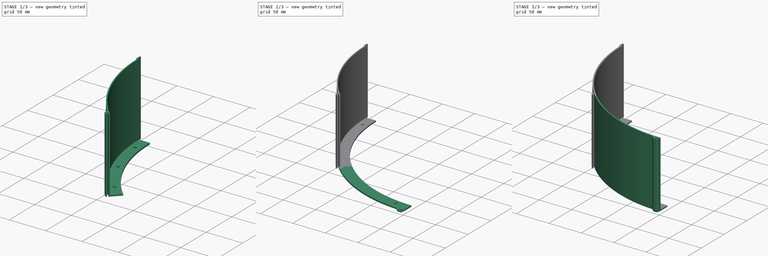
[diagram: build sequence overview — one tinted view per stage of 3, left to right]
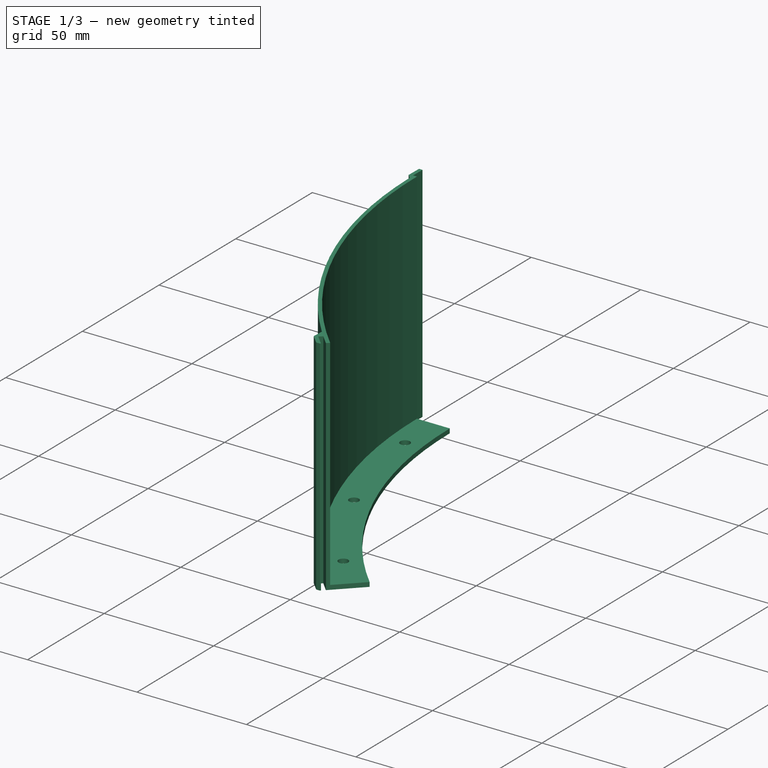
[diagram: stage 1 of 3 — iso view after this stage's code; geometry added in this stage tinted green]
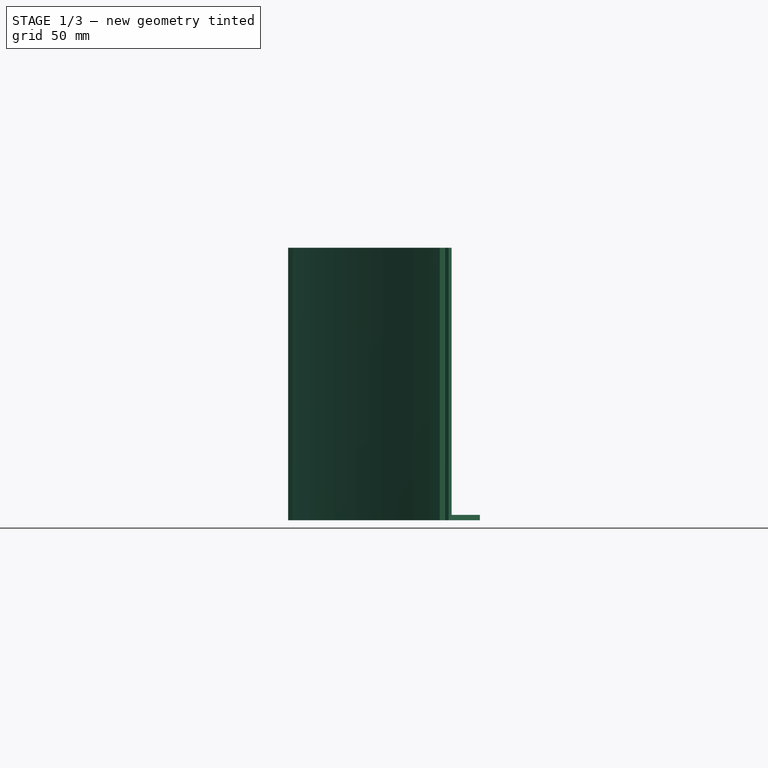
[diagram: stage 1 of 3 — front view after this stage's code; geometry added in this stage tinted green]
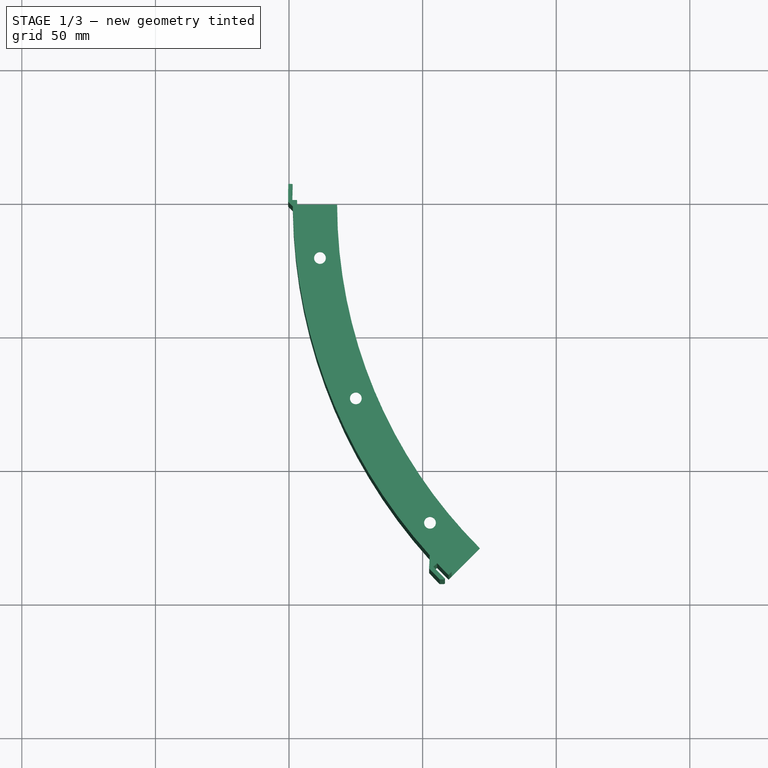
[diagram: stage 1 of 3 — top view after this stage's code; geometry added in this stage tinted green]
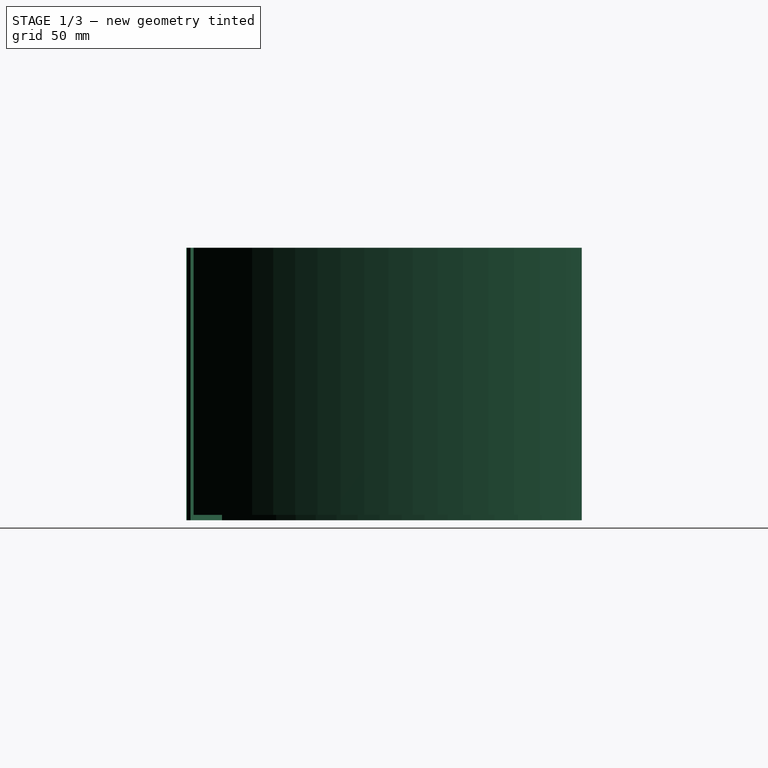
[diagram: stage 1 of 3 — right view after this stage's code; geometry added in this stage tinted green]
FCSTD DOCUMENT  (FreeCAD 0.20R29410 (Git))
Label: CatPieSide
License: All rights reserved
LicenseURL: http://en.wikipedia.org/wiki/All_rights_reserved
objects: Sketcher::SketchObject×6, PartDesign::Pad×4, PartDesign::Fillet×2, PartDesign::Body×2
note: 20 computed .brp shape members not serialized (recipe doc carries the construction recipe); baked Part::Feature solids carry a one-line shape summary decoded from their .brp

FEATURE [PartDesign::Body] Body  label="90"
  Group = -> [Sketch,Sketch001,Pad,Sketch002,Pad001,Fillet]
  Origin = -> Origin
  Tip = -> Fillet
FEATURE [Sketcher::SketchObject] Sketch003  label="Template001"
  FullyConstrained = true
  MapMode = 5
  Support = -> [XY_Plane001]
  sketch-geometry (46):
    g0: ArcOfCircle CenterX=0 CenterY=0 CenterZ=0 NormalX=0 NormalY=0 NormalZ=1 AngleXU=0 Radius=197 StartAngle=3.1426 EndAngle=3.928
    g1: ArcOfCircle CenterX=0 CenterY=0 CenterZ=0 NormalX=0 NormalY=0 NormalZ=1 AngleXU=0 Radius=182 StartAngle=3.1426 EndAngle=3.928
    g2: LineSegment StartX=-198.598 StartY=-0.86114 StartZ=0 EndX=-200.348 EndY=-0.868728 EndZ=0
    g3: ArcOfCircle CenterX=0 CenterY=0 CenterZ=0 NormalX=0 NormalY=0 NormalZ=1 AngleXU=0 Radius=198.6 StartAngle=3.1426 EndAngle=3.14593
    g4: LineSegment StartX=-198.6 StartY=-0.2 StartZ=0 EndX=-197 EndY=-0.198389 EndZ=0
    g5: ArcOfCircle CenterX=0 CenterY=0 CenterZ=0 NormalX=0 NormalY=0 NormalZ=1 AngleXU=0 Radius=200.35 StartAngle=3.11241 EndAngle=3.14593
    g6: LineSegment StartX=-200.265 StartY=5.84594 StartZ=0 EndX=-198.665 EndY=5.79925 EndZ=0
    g7: ArcOfCircle CenterX=0 CenterY=0 CenterZ=0 NormalX=0 NormalY=0 NormalZ=1 AngleXU=0 Radius=198.75 StartAngle=3.11241 EndAngle=3.1426
    g8: LineSegment StartX=-197 StartY=-0.198389 StartZ=0 EndX=-182 EndY=-0.183283 EndZ=0
    g9: LineSegment StartX=-198.75 StartY=-0.200151 StartZ=0 EndX=-198.6 EndY=-0.2 EndZ=0
    g10: ArcOfCircle CenterX=0 CenterY=0 CenterZ=0 NormalX=0 NormalY=0 NormalZ=1 AngleXU=0 Radius=198.6 StartAngle=3.14593 EndAngle=3.15478
    g11: LineSegment StartX=-200.348 StartY=-0.868728 StartZ=0 EndX=-198.583 EndY=-2.61887 EndZ=0
    g12: LineSegment StartX=-128.564 StartY=-128.823 StartZ=0 EndX=-139.16 EndY=-139.44 EndZ=0
    g13: LineSegment StartX=-139.16 StartY=-139.44 StartZ=0 EndX=-140.29 EndY=-140.573 EndZ=0
    g14: Circle CenterX=-188.424 CenterY=-20.1619 CenterZ=0 NormalX=0 NormalY=0 NormalZ=1 AngleXU=0 Radius=2.2
    g15: Circle CenterX=-147.253 CenterY=-119.276 CenterZ=0 NormalX=0 NormalY=0 NormalZ=1 AngleXU=0 Radius=2.2
    g16: ArcOfCircle CenterX=0 CenterY=0 CenterZ=0 NormalX=0 NormalY=0 NormalZ=1 AngleXU=0 Radius=189.5 StartAngle=3.1426 EndAngle=3.928
    g17: ArcOfCircle CenterX=0 CenterY=0 CenterZ=0 NormalX=0 NormalY=0 NormalZ=1 AngleXU=0 Radius=200.35 StartAngle=3.89781 EndAngle=3.928
    g18: ArcOfCircle CenterX=0 CenterY=0 CenterZ=0 NormalX=0 NormalY=0 NormalZ=1 AngleXU=0 Radius=198.75 StartAngle=3.89781 EndAngle=3.928
    g19: LineSegment StartX=-145.742 StartY=-137.475 StartZ=0 EndX=-144.578 EndY=-136.377 EndZ=0
    g20: LineSegment StartX=-140.29 StartY=-140.573 StartZ=0 EndX=-140.396 EndY=-140.679 EndZ=0
    g21: LineSegment StartX=-198.75 StartY=-0.200151 StartZ=0 EndX=-200.265 EndY=5.84594 EndZ=0
    g22: LineSegment StartX=-140.396 StartY=-140.679 StartZ=0 EndX=-145.742 EndY=-137.475 EndZ=0
    g23: ArcOfCircle CenterX=0 CenterY=0 CenterZ=0 NormalX=0 NormalY=0 NormalZ=1 AngleXU=0 Radius=198.6 StartAngle=3.89705 EndAngle=3.928
    g24: LineSegment StartX=-144.572 StartY=-136.165 StartZ=0 EndX=-145.955 EndY=-137.468 EndZ=0
    g25: ArcOfCircle CenterX=0 CenterY=0 CenterZ=0 NormalX=0 NormalY=0 NormalZ=1 AngleXU=0 Radius=198.75 StartAngle=3.89705 EndAngle=3.89781
    g26: LineSegment StartX=-144.681 StartY=-136.268 StartZ=0 EndX=-144.578 EndY=-136.377 EndZ=0
    g27: ArcOfCircle CenterX=0 CenterY=0 CenterZ=0 NormalX=0 NormalY=0 NormalZ=1 AngleXU=0 Radius=200.5 StartAngle=3.89705 EndAngle=3.928
    g28: LineSegment StartX=-141.526 StartY=-141.811 StartZ=0 EndX=-141.632 EndY=-141.918 EndZ=0
    g29: ArcOfCircle CenterX=0 CenterY=0 CenterZ=0 NormalX=0 NormalY=0 NormalZ=1 AngleXU=0 Radius=202.1 StartAngle=3.89367 EndAngle=3.92208
    g30: LineSegment StartX=-141.632 StartY=-141.918 StartZ=0 EndX=-142.762 EndY=-143.05 EndZ=0
    g31: Circle CenterX=-198.75 CenterY=-0.200151 CenterZ=0 NormalX=0 NormalY=0 NormalZ=1 AngleXU=0 Radius=1.6
    g32: Circle CenterX=-145.955 CenterY=-137.468 CenterZ=0 NormalX=0 NormalY=0 NormalZ=1 AngleXU=0 Radius=1.6
    g33: ArcOfCircle CenterX=0 CenterY=0 CenterZ=0 NormalX=0 NormalY=0 NormalZ=1 AngleXU=0 Radius=198.6 StartAngle=3.15478 EndAngle=3.8765
    g34: ArcOfCircle CenterX=0 CenterY=0 CenterZ=0 NormalX=0 NormalY=0 NormalZ=1 AngleXU=0 Radius=198.6 StartAngle=3.8765 EndAngle=3.89705
    g35: LineSegment StartX=-147.587 StartY=-138.067 StartZ=0 EndX=-147.34 EndY=-133.165 EndZ=0
    g36: LineSegment StartX=-147.34 StartY=-133.165 StartZ=0 EndX=-144.603 EndY=-136.194 EndZ=0
    g37: ArcOfCircle CenterX=0 CenterY=0 CenterZ=0 NormalX=0 NormalY=0 NormalZ=1 AngleXU=0 Radius=202.1 StartAngle=3.92208 EndAngle=3.928
    g38: LineSegment StartX=-141.632 StartY=-141.918 StartZ=0 EndX=-141.915 EndY=-142.201 EndZ=0
    g39: LineSegment StartX=-141.915 StartY=-142.201 StartZ=0 EndX=-143.607 EndY=-142.202 EndZ=0
    g40: Circle CenterX=-175.002 CenterY=-72.6948 CenterZ=0 NormalX=0 NormalY=0 NormalZ=1 AngleXU=0 Radius=2.2
    g41: LineSegment StartX=0 StartY=0 StartZ=0 EndX=-175.002 EndY=-72.6948 EndZ=0
    g42: LineSegment StartX=-140.396 StartY=-140.679 StartZ=0 EndX=-141.526 EndY=-141.811 EndZ=0
    g43: LineSegment StartX=0 StartY=0 StartZ=0 EndX=-182 EndY=-0.183283 EndZ=0
    g44: LineSegment StartX=0 StartY=0 StartZ=0 EndX=-128.564 EndY=-128.823 EndZ=0
    g45: GeomPoint X=-198.6 Y=0 Z=0
  constraints (121):
    c: Radius(g0) = 197
    c: DistanceX(g0,g1) = 15
    c: Coincident(g2,g10)
    c: Coincident(g3,g10)
    c: Coincident(g4,g3)
    c: Coincident(g4,g0)
    c: Coincident(g5,g2)
    c: PointOnObject(g0,g2)
    c: Coincident(g6,g5)
    c: PointOnObject(g0,g6)
    c: DistanceX(g7,g3) = 0.15
    c: Equal(g4,g6)
    c: Coincident(g6,g7)
    c: Coincident(g8,g0)
    c: Coincident(g8,g1)
    c: Coincident(g9,g7)
    c: Coincident(g9,g3)
    c: Coincident(g10,g33)
    c: Coincident(g11,g5)
    c: Coincident(g11,g33)
    c: Angle(g11,g2) = 0.785398
    c: Coincident(g12,g1)
    c: Coincident(g12,g0)
    c: Coincident(g13,g0)
    c: Coincident(g13,g23)
    c: Equal(g15,g14)
    c: Radius(g14) = 2.2
    c: Symmetric(g1,g0,g16)
    c: PointOnObject(g15,g16)
    c: Distance(g14,g16) = 20
    c: Distance(g15,g16) = 20
    c: Coincident(g19,g17)
    c: Coincident(g19,g18)
    c: PointOnObject(g0,g19)
    c: Equal(g19,g6)
    c: Coincident(g20,g23)
    c: Coincident(g20,g18)
    c: Equal(g20,g9)
    c: Coincident(g21,g7)
    c: Coincident(g21,g5)
    c: Coincident(g22,g18)
    c: Coincident(g22,g17)
    c: Equal(g21,g22)
    c: Coincident(g34,g23)
    c: Coincident(g24,g34)
    c: PointOnObject(g0,g24)
    c: Coincident(g25,g18)
    c: PointOnObject(g25,g24)
    c: Coincident(g26,g25)
    c: Coincident(g26,g18)
    c: Equal(g20,g26)
    c: Coincident(g27,g24)
    c: Coincident(g28,g17)
    c: Coincident(g28,g27)
    c: Equal(g20,g28)
    c: Coincident(g30,g27)
    c: Equal(g13,g30)
    c: Coincident(g31,g7)
    c: Radius(g31) = 1.6
    c: Tangent(g31,g5)
    c: Tangent(g31,g11)
    c: Coincident(g32,g24)
    c: Tangent(g32,g29)
    c: Coincident(g33,g34)
    c: Coincident(g35,g29)
    c: Coincident(g35,g33)
    c: Tangent(g32,g35)
    c: Coincident(g36,g33)
    c: Tangent(g34,g36)
    c: PointOnObject(g36,g24)
    c: Angle(g35,g36) = 0.785398
    c: Distance(g7,g6) = 6
    c: Coincident(g37,g30)
    c: Coincident(g37,g29)
    c: Coincident(g38,g27)
    c: Coincident(g39,g38)
    c: Coincident(g39,g29)
    c: Angle(g39,g30) = 0.785398
    c: Coincident(g41,g40)
    c: Symmetric(g14,g15,g41)
    c: Equal(g40,g15)
    c: PointOnObject(g40,g16)
    c: Coincident(g0,g1)
    c: Coincident(g0,g3)
    c: Coincident(g0,g5)
    c: Coincident(g0,g7)
    c: Coincident(g0,g10)
    c: Coincident(g0,g16)
    c: Coincident(g0,g17)
    c: Coincident(g0,g18)
    c: Coincident(g0,g23)
    c: Coincident(g0,g25)
    c: Coincident(g0,g27)
    c: Coincident(g0,g29)
    c: Coincident(g0,g33)
    c: Coincident(g0,g34)
    c: Coincident(g0,g37)
    c: Coincident(g0,g41)
    c: Coincident(g42,g18)
    c: Coincident(g42,g17)
    c: PointOnObject(g0,g42)
    c: PointOnObject(g0,g20)
    c: PointOnObject(g0,g13)
    c: PointOnObject(g0,g12)
    c: PointOnObject(g0,g30)
    c: PointOnObject(g0,g38)
    c: PointOnObject(g0,g28)
    c: PointOnObject(g0,g8)
    c: PointOnObject(g0,g4)
    c: PointOnObject(g0,g9)
    c: PointOnObject(g16,g8)
    c: Coincident(g43,g0)
    c: Coincident(g43,g1)
    c: Coincident(g44,g0)
    c: Coincident(g44,g1)
    c: Angle(g43,g44) = 0.785398  '__A3__'
    c: Coincident(g0,g-1)  '__A1_'
    c: PointOnObject(g45,g-1)
    c: PointOnObject(g45,g3)
    c: DistanceY(g4,g45) = 0.2
    c: Distance(g38) = 0.4
FEATURE [Sketcher::SketchObject] Sketch004
  ExternalGeometry = -> [Sketch003]
  FullyConstrained = true
  MapMode = 5
  Support = -> [XY_Plane001]
  sketch-geometry (18):
    g0: ArcOfCircle CenterX=1.73582e-11 CenterY=-4.16254e-11 CenterZ=0 NormalX=0 NormalY=0 NormalZ=1 AngleXU=0 Radius=182 StartAngle=3.1426 EndAngle=3.928
    g1: ArcOfCircle CenterX=-1.04378e-11 CenterY=2.65198e-11 CenterZ=0 NormalX=0 NormalY=0 NormalZ=1 AngleXU=0 Radius=198.6 StartAngle=3.15478 EndAngle=3.8765
    g2: ArcOfCircle CenterX=3.515e-13 CenterY=-1.605e-13 CenterZ=0 NormalX=0 NormalY=0 NormalZ=1 AngleXU=0 Radius=202.1 StartAngle=3.89367 EndAngle=3.92208
    g3: ArcOfCircle CenterX=-7.8623e-11 CenterY=1.30109e-10 CenterZ=0 NormalX=0 NormalY=0 NormalZ=1 AngleXU=0 Radius=200.5 StartAngle=3.89705 EndAngle=3.928
    g4: ArcOfCircle CenterX=1.91988e-10 CenterY=-2.50268e-10 CenterZ=0 NormalX=0 NormalY=0 NormalZ=1 AngleXU=0 Radius=198.6 StartAngle=3.89705 EndAngle=3.928
    g5: ArcOfCircle CenterX=8.9726e-12 CenterY=-3.578e-13 CenterZ=0 NormalX=0 NormalY=0 NormalZ=1 AngleXU=0 Radius=198.75 StartAngle=3.11241 EndAngle=3.1426
    g6: ArcOfCircle CenterX=4.775e-13 CenterY=-2.474e-13 CenterZ=0 NormalX=0 NormalY=0 NormalZ=1 AngleXU=0 Radius=200.35 StartAngle=3.11241 EndAngle=3.14593
    g7: Circle CenterX=-188.424 CenterY=-20.1619 CenterZ=0 NormalX=0 NormalY=0 NormalZ=1 AngleXU=0 Radius=2.2
    g8: Circle CenterX=-175.002 CenterY=-72.6948 CenterZ=0 NormalX=0 NormalY=0 NormalZ=1 AngleXU=0 Radius=2.2
    g9: Circle CenterX=-147.253 CenterY=-119.276 CenterZ=0 NormalX=0 NormalY=0 NormalZ=1 AngleXU=0 Radius=2.2
    g10: LineSegment StartX=-198.583 StartY=-2.61887 StartZ=0 EndX=-200.348 EndY=-0.868728 EndZ=0
    g11: LineSegment StartX=-198.75 StartY=-0.200151 StartZ=0 EndX=-182 EndY=-0.183283 EndZ=0
    g12: LineSegment StartX=-200.265 StartY=5.84594 StartZ=0 EndX=-198.665 EndY=5.79925 EndZ=0
    g13: LineSegment StartX=-147.34 StartY=-133.165 StartZ=0 EndX=-147.587 EndY=-138.067 EndZ=0
    g14: LineSegment StartX=-143.607 StartY=-142.202 StartZ=0 EndX=-141.915 EndY=-142.201 EndZ=0
    g15: LineSegment StartX=-141.915 StartY=-142.201 StartZ=0 EndX=-141.632 EndY=-141.918 EndZ=0
    g16: LineSegment StartX=-145.955 StartY=-137.468 StartZ=0 EndX=-144.572 EndY=-136.165 EndZ=0
    g17: LineSegment StartX=-140.29 StartY=-140.573 StartZ=0 EndX=-128.564 EndY=-128.823 EndZ=0
  constraints (43):
    c: Coincident(g10,g1)
    c: Coincident(g10,g6)
    c: Coincident(g11,g5)
    c: Coincident(g11,g0)
    c: Coincident(g12,g6)
    c: Coincident(g12,g5)
    c: Coincident(g13,g1)
    c: Coincident(g13,g2)
    c: Coincident(g14,g2)
    c: Coincident(g15,g14)
    c: Coincident(g15,g3)
    c: Coincident(g16,g3)
    c: Coincident(g16,g4)
    c: Coincident(g17,g4)
    c: Coincident(g17,g0)
    c: Equal(g9,g-3)
    c: Equal(g8,g-4)
    c: Equal(g-5,g7)
    c: Coincident(g7,g-5)
    c: Coincident(g8,g-4)
    c: Coincident(g-3,g9)
    c: Coincident(g0,g-6)
    c: Coincident(g1,g-7)
    c: Equal(g-7,g1)
    c: Equal(g-6,g0)
    c: Coincident(g0,g-6)
    c: Coincident(g1,g-7)
    c: Coincident(g6,g-8)
    c: Coincident(g6,g-8)
    c: Coincident(g5,g-9)
    c: Coincident(g5,g-9)
    c: Coincident(g2,g-13)
    c: Coincident(g2,g-13)
    c: Coincident(g-12,g14)
    c: Coincident(g-11,g3)
    c: Coincident(g3,g-11)
    c: Coincident(g4,g-10)
    c: Coincident(g4,g-10)
    c: Equal(g6,g-8)
    c: Equal(g5,g-9)
    c: Equal(g2,g-13)
    c: Equal(g3,g-11)
    c: Equal(g4,g-10)
FEATURE [PartDesign::Pad] Pad002
  Direction = (0,0,1)
  Length = 2
  Length2 = 10
  Profile = -> Sketch004
  ReferenceAxis = -> Sketch004 [N_Axis]
  Type = 0
FEATURE [Sketcher::SketchObject] Sketch005
  AttachmentOffset = pos=(0,0,2) rot=(0,0,1;0rad)
  ExternalGeometry = -> [Sketch003]
  FullyConstrained = true
  MapMode = 5
  Placement = pos=(0,0,2) rot=(0,0,1;0rad)
  Support = -> [XY_Plane001]
  expr: .AttachmentOffset.Base.z = <<Pad002>>.Length
  sketch-geometry (15):
    g0: ArcOfCircle CenterX=1.03982e-11 CenterY=-2.6545e-11 CenterZ=0 NormalX=0 NormalY=0 NormalZ=1 AngleXU=0 Radius=198.6 StartAngle=3.15478 EndAngle=3.8765
    g1: ArcOfCircle CenterX=-7.2027e-10 CenterY=7.48327e-10 CenterZ=0 NormalX=0 NormalY=0 NormalZ=1 AngleXU=0 Radius=202.1 StartAngle=3.89367 EndAngle=3.92208
    g2: ArcOfCircle CenterX=-2.01947e-10 CenterY=2.07921e-10 CenterZ=0 NormalX=0 NormalY=0 NormalZ=1 AngleXU=0 Radius=200.5 StartAngle=3.89705 EndAngle=3.928
    g3: ArcOfCircle CenterX=-3.90304e-11 CenterY=4.01816e-11 CenterZ=0 NormalX=0 NormalY=0 NormalZ=1 AngleXU=0 Radius=198.6 StartAngle=3.89705 EndAngle=3.928
    g4: ArcOfCircle CenterX=-4.9585e-12 CenterY=-3.52778e-10 CenterZ=0 NormalX=0 NormalY=0 NormalZ=1 AngleXU=0 Radius=198.75 StartAngle=3.11241 EndAngle=3.1426
    g5: ArcOfCircle CenterX=-1.4538e-12 CenterY=-1.17972e-10 CenterZ=0 NormalX=0 NormalY=0 NormalZ=1 AngleXU=0 Radius=200.35 StartAngle=3.11241 EndAngle=3.14593
    g6: LineSegment StartX=-198.583 StartY=-2.61887 StartZ=0 EndX=-200.348 EndY=-0.868728 EndZ=0
    g7: LineSegment StartX=-200.265 StartY=5.84594 StartZ=0 EndX=-198.665 EndY=5.79925 EndZ=0
    g8: LineSegment StartX=-147.34 StartY=-133.165 StartZ=0 EndX=-147.587 EndY=-138.067 EndZ=0
    g9: LineSegment StartX=-143.607 StartY=-142.202 StartZ=0 EndX=-141.915 EndY=-142.201 EndZ=0
    g10: LineSegment StartX=-141.915 StartY=-142.201 StartZ=0 EndX=-141.632 EndY=-141.918 EndZ=0
    g11: LineSegment StartX=-145.955 StartY=-137.468 StartZ=0 EndX=-144.572 EndY=-136.165 EndZ=0
    g12: ArcOfCircle CenterX=-7.8671e-12 CenterY=1.90289e-11 CenterZ=0 NormalX=0 NormalY=0 NormalZ=1 AngleXU=0 Radius=197 StartAngle=3.1426 EndAngle=3.928
    g13: LineSegment StartX=-140.29 StartY=-140.573 StartZ=0 EndX=-139.16 EndY=-139.44 EndZ=0
    g14: LineSegment StartX=-198.75 StartY=-0.200151 StartZ=0 EndX=-197 EndY=-0.198389 EndZ=0
  constraints (37):
    c: Coincident(g6,g0)
    c: Coincident(g6,g5)
    c: Coincident(g7,g5)
    c: Coincident(g7,g4)
    c: Coincident(g8,g0)
    c: Coincident(g8,g1)
    c: Coincident(g9,g1)
    c: Coincident(g10,g9)
    c: Coincident(g10,g2)
    c: Coincident(g11,g2)
    c: Coincident(g11,g3)
    c: Coincident(g13,g3)
    c: Coincident(g13,g12)
    c: Coincident(g14,g4)
    c: Coincident(g14,g12)
    c: Equal(g0,g-6)
    c: Equal(g-3,g12)
    c: Equal(g3,g-9)
    c: Equal(g-8,g2)
    c: Equal(g-7,g1)
    c: Equal(g5,g-5)
    c: Equal(g-4,g4)
    c: Coincident(g5,g-5)
    c: Coincident(g5,g-5)
    c: Coincident(g0,g-6)
    c: Coincident(g4,g-4)
    c: Coincident(g4,g-4)
    c: Coincident(g12,g-3)
    c: Coincident(g12,g-3)
    c: Coincident(g3,g-9)
    c: Coincident(g3,g-9)
    c: Coincident(g2,g-8)
    c: Coincident(g-8,g2)
    c: Coincident(g9,g-10)
    c: Coincident(g1,g-10)
    c: Coincident(g1,g-7)
    c: Coincident(g0,g-6)
FEATURE [PartDesign::Pad] Pad003
  BaseFeature = -> Pad002
  Direction = (0,0,1)
  Length = 100
  Length2 = 10
  Profile = -> Sketch005
  ReferenceAxis = -> Sketch005 [N_Axis]
  Refine = true
  Type = 0
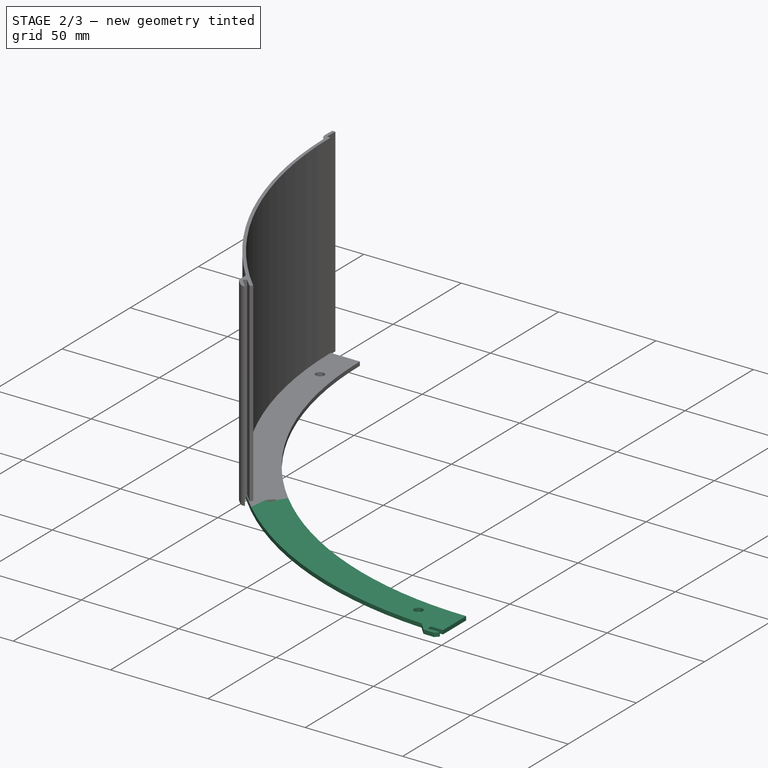
[diagram: stage 2 of 3 — iso view after this stage's code; geometry added in this stage tinted green]
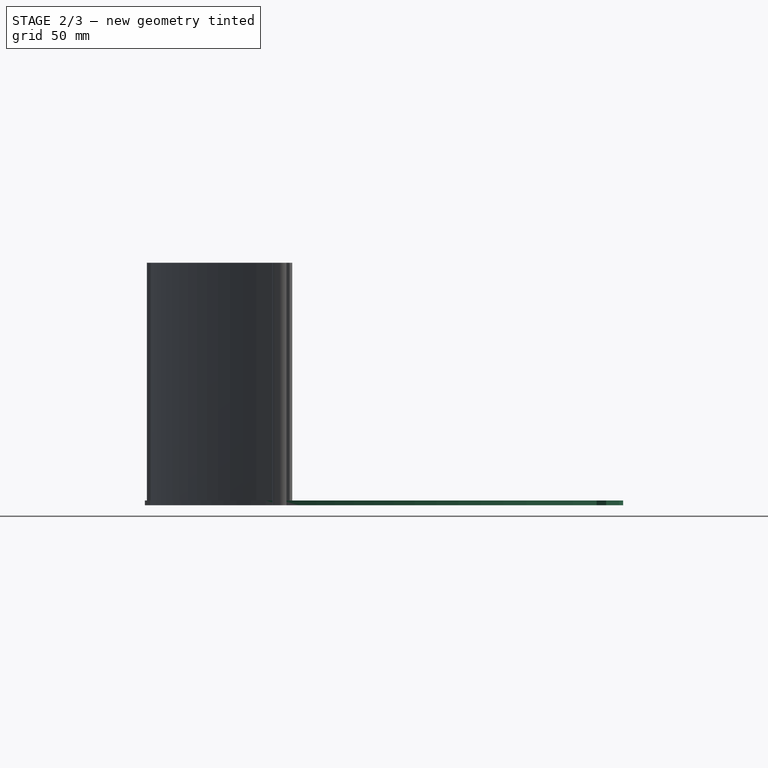
[diagram: stage 2 of 3 — front view after this stage's code; geometry added in this stage tinted green]
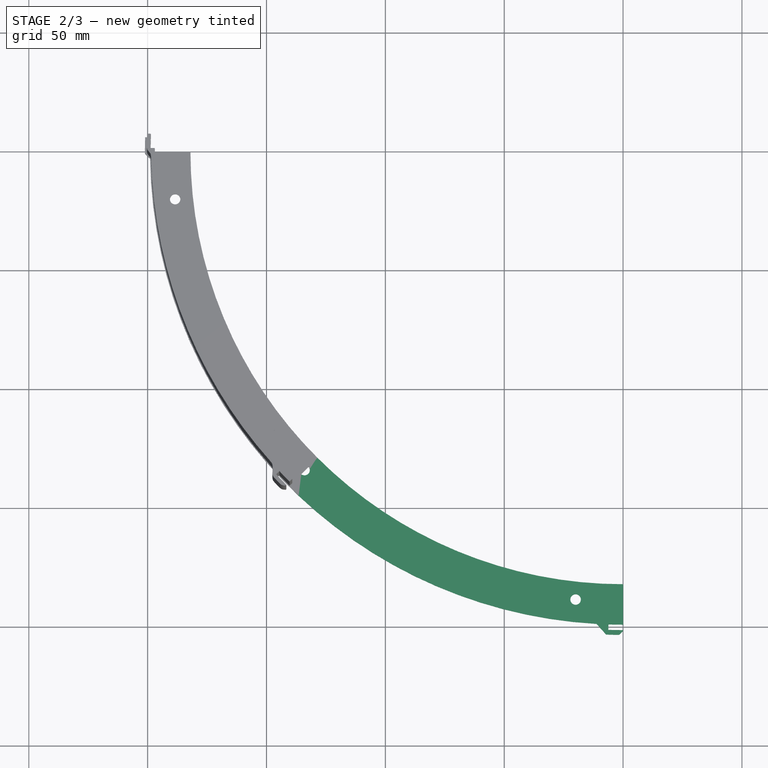
[diagram: stage 2 of 3 — top view after this stage's code; geometry added in this stage tinted green]
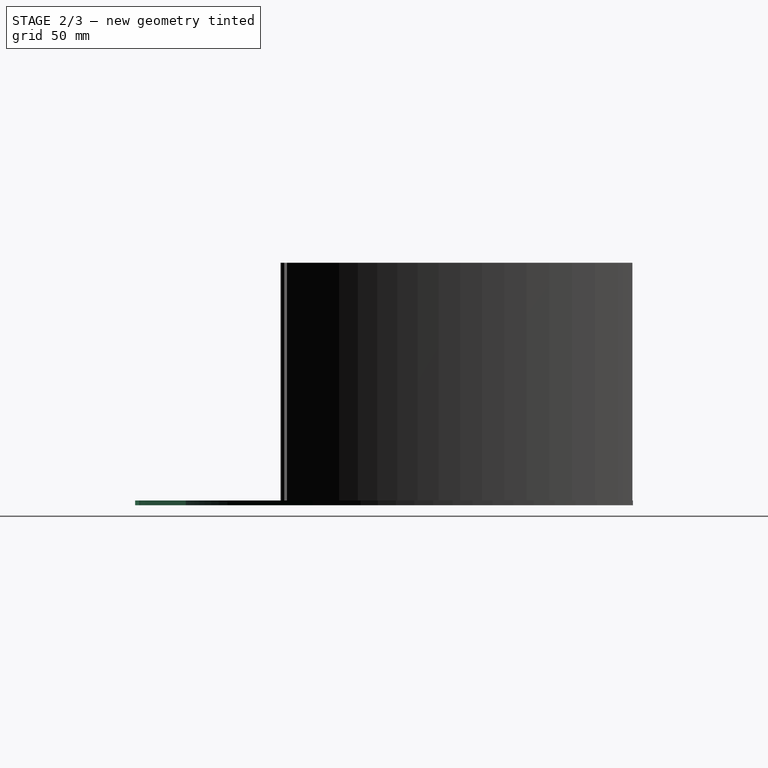
[diagram: stage 2 of 3 — right view after this stage's code; geometry added in this stage tinted green]
FEATURE [Sketcher::SketchObject] Sketch  label="Template"
  FullyConstrained = true
  MapMode = 5
  Support = -> [XY_Plane]
  sketch-geometry (42):
    g0: ArcOfCircle CenterX=5.22e-14 CenterY=4.4062e-12 CenterZ=0 NormalX=0 NormalY=0 NormalZ=1 AngleXU=0 Radius=197 StartAngle=3.14159 EndAngle=4.71239
    g1: ArcOfCircle CenterX=5.22e-14 CenterY=4.4062e-12 CenterZ=0 NormalX=0 NormalY=0 NormalZ=1 AngleXU=0 Radius=182 StartAngle=3.14159 EndAngle=4.71239
    g2: LineSegment StartX=-198.998 StartY=-0.826089 StartZ=0 EndX=-201.148 EndY=-0.835014 EndZ=0
    g3: ArcOfCircle CenterX=5.22e-14 CenterY=4.4062e-12 CenterZ=0 NormalX=0 NormalY=0 NormalZ=1 AngleXU=0 Radius=199 StartAngle=3.14159 EndAngle=3.14574
    g4: LineSegment StartX=-199 StartY=1e-16 StartZ=0 EndX=-197 EndY=2.3e-15 EndZ=0
    g5: ArcOfCircle CenterX=5.22e-14 CenterY=4.4062e-12 CenterZ=0 NormalX=0 NormalY=0 NormalZ=1 AngleXU=0 Radius=201.15 StartAngle=3.11146 EndAngle=3.14574
    g6: LineSegment StartX=-201.059 StartY=6.05957 StartZ=0 EndX=-199.06 EndY=5.99932 EndZ=0
    g7: ArcOfCircle CenterX=5.22e-14 CenterY=4.4062e-12 CenterZ=0 NormalX=0 NormalY=0 NormalZ=1 AngleXU=0 Radius=199.15 StartAngle=3.11146 EndAngle=3.14159
    g8: LineSegment StartX=-197 StartY=2.3e-15 StartZ=0 EndX=-182 EndY=2.3e-15 EndZ=0
    g9: LineSegment StartX=-199.15 StartY=1.92e-14 StartZ=0 EndX=-199 EndY=1e-16 EndZ=0
    g10: ArcOfCircle CenterX=5.22e-14 CenterY=4.4062e-12 CenterZ=0 NormalX=0 NormalY=0 NormalZ=1 AngleXU=0 Radius=199 StartAngle=3.14574 EndAngle=3.15661
    g11: LineSegment StartX=-201.148 StartY=-0.835014 StartZ=0 EndX=-198.978 EndY=-2.98776 EndZ=0
    g12: LineSegment StartX=-2.61e-14 StartY=-182 StartZ=0 EndX=-1.1e-15 EndY=-197 EndZ=0
    g13: LineSegment StartX=-1.1e-15 StartY=-197 StartZ=0 EndX=0 EndY=-199 EndZ=0
    g14: Circle CenterX=-188.445 CenterY=-19.9721 CenterZ=0 NormalX=0 NormalY=0 NormalZ=1 AngleXU=0 Radius=2.2
    g15: Circle CenterX=-19.9721 CenterY=-188.445 CenterZ=0 NormalX=0 NormalY=0 NormalZ=1 AngleXU=0 Radius=2.2
    g16: ArcOfCircle CenterX=5.22e-14 CenterY=4.4062e-12 CenterZ=0 NormalX=0 NormalY=0 NormalZ=1 AngleXU=0 Radius=189.5 StartAngle=3.14159 EndAngle=4.71239
    g17: ArcOfCircle CenterX=5.22e-14 CenterY=4.4062e-12 CenterZ=0 NormalX=0 NormalY=0 NormalZ=1 AngleXU=0 Radius=201.15 StartAngle=4.68226 EndAngle=4.71239
    g18: ArcOfCircle CenterX=5.22e-14 CenterY=4.4062e-12 CenterZ=0 NormalX=0 NormalY=0 NormalZ=1 AngleXU=0 Radius=199.15 StartAngle=4.68226 EndAngle=4.71239
    g19: LineSegment StartX=-6.05957 StartY=-201.059 StartZ=0 EndX=-5.99932 EndY=-199.06 EndZ=0
    g20: LineSegment StartX=0 StartY=-199 StartZ=0 EndX=-2.52e-14 EndY=-199.15 EndZ=0
    g21: LineSegment StartX=-199.15 StartY=1.92e-14 StartZ=0 EndX=-201.059 EndY=6.05957 EndZ=0
    g22: LineSegment StartX=-2.52e-14 StartY=-199.15 StartZ=0 EndX=-6.05957 EndY=-201.059 EndZ=0
    g23: ArcOfCircle CenterX=5.22e-14 CenterY=4.4062e-12 CenterZ=0 NormalX=0 NormalY=0 NormalZ=1 AngleXU=0 Radius=199 StartAngle=4.68151 EndAngle=4.71239
    g24: LineSegment StartX=-6.14462 StartY=-198.905 StartZ=0 EndX=-6.21564 EndY=-201.204 EndZ=0
    g25: ArcOfCircle CenterX=5.22e-14 CenterY=4.4062e-12 CenterZ=0 NormalX=0 NormalY=0 NormalZ=1 AngleXU=0 Radius=199.15 StartAngle=4.68151 EndAngle=4.68226
    g26: LineSegment StartX=-6.14925 StartY=-199.055 StartZ=0 EndX=-5.99932 EndY=-199.06 EndZ=0
    g27: ArcOfCircle CenterX=5.22e-14 CenterY=4.4062e-12 CenterZ=0 NormalX=0 NormalY=0 NormalZ=1 AngleXU=0 Radius=201.3 StartAngle=4.68151 EndAngle=4.71239
    g28: LineSegment StartX=-2.76e-14 StartY=-201.15 StartZ=0 EndX=-3.4e-15 EndY=-201.3 EndZ=0
    g29: ArcOfCircle CenterX=5.22e-14 CenterY=4.4062e-12 CenterZ=0 NormalX=0 NormalY=0 NormalZ=1 AngleXU=0 Radius=203.3 StartAngle=4.67728 EndAngle=4.70455
    g30: LineSegment StartX=-3.4e-15 StartY=-201.3 StartZ=0 EndX=-3.4e-15 EndY=-203.3 EndZ=0
    g31: Circle CenterX=-199.15 CenterY=1.92e-14 CenterZ=0 NormalX=0 NormalY=0 NormalZ=1 AngleXU=0 Radius=2
    g32: Circle CenterX=-6.21564 CenterY=-201.204 CenterZ=0 NormalX=0 NormalY=0 NormalZ=1 AngleXU=0 Radius=2
    g33: ArcOfCircle CenterX=5.22e-14 CenterY=4.4062e-12 CenterZ=0 NormalX=0 NormalY=0 NormalZ=1 AngleXU=0 Radius=199 StartAngle=3.15661 EndAngle=4.65634
    g34: ArcOfCircle CenterX=5.22e-14 CenterY=4.4062e-12 CenterZ=0 NormalX=0 NormalY=0 NormalZ=1 AngleXU=0 Radius=199 StartAngle=4.65634 EndAngle=4.68151
    g35: LineSegment StartX=-7.13672 StartY=-203.175 StartZ=0 EndX=-11.1471 EndY=-198.688 EndZ=0
    g36: LineSegment StartX=-11.1471 StartY=-198.688 StartZ=0 EndX=-6.14656 EndY=-198.968 EndZ=0
    g37: ArcOfCircle CenterX=5.22e-14 CenterY=4.4062e-12 CenterZ=0 NormalX=0 NormalY=0 NormalZ=1 AngleXU=0 Radius=203.3 StartAngle=4.70455 EndAngle=4.71239
    g38: LineSegment StartX=-3.4e-15 StartY=-201.3 StartZ=0 EndX=-2.17e-14 EndY=-201.7 EndZ=0
    g39: LineSegment StartX=-2.17e-14 StartY=-201.7 StartZ=0 EndX=-1.59375 EndY=-203.294 EndZ=0
    g40: Circle CenterX=-133.997 CenterY=-133.997 CenterZ=0 NormalX=0 NormalY=0 NormalZ=1 AngleXU=0 Radius=2.2
    g41: LineSegment StartX=5.22e-14 StartY=4.4062e-12 StartZ=0 EndX=-133.997 EndY=-133.997 EndZ=0
  constraints (113):
    c: Coincident(g0,g-1)
    c: PointOnObject(g0,g-2)
    c: Radius(g0) = 197
    c: Coincident(g10,g0)
    c: PointOnObject(g23,g-2)
    c: Coincident(g1,g0)
    c: PointOnObject(g1,g-1)
    c: PointOnObject(g1,g-2)
    c: PointOnObject(g0,g-1)
    c: DistanceX(g0,g1) = 15
    c: Coincident(g2,g10)
    c: Coincident(g3,g0)
    c: Coincident(g3,g10)
    c: PointOnObject(g3,g-1)
    c: Coincident(g4,g3)
    c: Coincident(g4,g0)
    c: Coincident(g5,g0)
    c: Coincident(g5,g2)
    c: PointOnObject(g0,g2)
    c: Coincident(g6,g5)
    c: PointOnObject(g0,g6)
    c: Coincident(g7,g0)
    c: PointOnObject(g7,g-1)
    c: DistanceX(g7,g3) = 0.15
    c: Equal(g4,g6)
    c: Coincident(g6,g7)
    c: Coincident(g8,g0)
    c: Coincident(g8,g1)
    c: Coincident(g9,g7)
    c: Coincident(g9,g3)
    c: Coincident(g10,g33)
    c: Coincident(g10,g33)
    c: Coincident(g11,g5)
    c: Coincident(g11,g33)
    c: Angle(g11,g2) = 0.785398
    c: Coincident(g12,g1)
    c: Coincident(g12,g0)
    c: Coincident(g13,g0)
    c: Coincident(g13,g23)
    c: Equal(g15,g14)
    c: Radius(g14) = 2.2
    c: Coincident(g16,g0)
    c: PointOnObject(g16,g8)
    c: Symmetric(g1,g0,g16)
    c: PointOnObject(g15,g16)
    c: Distance(g14,g16) = 20
    c: Distance(g15,g16) = 20
    c: Coincident(g17,g0)
    c: PointOnObject(g17,g-2)
    c: Coincident(g18,g0)
    c: PointOnObject(g18,g-2)
    c: Coincident(g19,g17)
    c: Coincident(g19,g18)
    c: PointOnObject(g0,g19)
    c: Equal(g19,g6)
    c: Coincident(g20,g23)
    c: Coincident(g20,g18)
    c: Equal(g20,g9)
    c: Coincident(g21,g7)
    c: Coincident(g21,g5)
    c: Coincident(g22,g18)
    c: Coincident(g22,g17)
    c: Equal(g21,g22)
    c: Coincident(g34,g23)
    c: Coincident(g33,g23)
    c: Coincident(g24,g34)
    c: PointOnObject(g0,g24)
    c: Coincident(g25,g0)
    c: Coincident(g25,g18)
    c: PointOnObject(g25,g24)
    c: Coincident(g26,g25)
    c: Coincident(g26,g18)
    c: Equal(g20,g26)
    c: Coincident(g27,g0)
    c: Coincident(g27,g24)
    c: PointOnObject(g27,g-2)
    c: Coincident(g28,g17)
    c: Coincident(g28,g27)
    c: Equal(g20,g28)
    c: Coincident(g29,g0)
    c: Coincident(g30,g27)
    c: Equal(g13,g30)
    c: Coincident(g31,g7)
    c: Radius(g31) = 2
    c: Tangent(g31,g5)
    c: Tangent(g31,g11)
    c: Coincident(g32,g24)
    c: Tangent(g32,g29)
    c: Coincident(g33,g34)
    c: Coincident(g33,g34)
    c: Coincident(g35,g29)
    c: Coincident(g35,g33)
    c: Tangent(g32,g35)
    c: Coincident(g36,g33)
    c: Tangent(g34,g36)
    c: PointOnObject(g36,g24)
    c: Angle(g35,g36) = 0.785398
    c: Distance(g7,g6) = 6
    c: Vertical(g30)
    c: Coincident(g37,g0)
    c: Coincident(g37,g30)
    c: Coincident(g37,g29)
    c: Coincident(g38,g27)
    c: PointOnObject(g38,g30)
    c: DistanceY(g38,g38) = 0.4
    c: Coincident(g39,g38)
    c: Coincident(g39,g29)
    c: Angle(g39,g30) = 0.785398
    c: Coincident(g41,g0)
    c: Coincident(g41,g40)
    c: Symmetric(g14,g15,g41)
    c: Equal(g40,g15)
    c: PointOnObject(g40,g16)
FEATURE [Sketcher::SketchObject] Sketch001
  ExternalGeometry = -> [Sketch]
  FullyConstrained = true
  MapMode = 5
  Support = -> [XY_Plane]
  sketch-geometry (18):
    g0: ArcOfCircle CenterX=-5.4625e-12 CenterY=-5.4494e-12 CenterZ=0 NormalX=0 NormalY=0 NormalZ=1 AngleXU=0 Radius=182 StartAngle=3.14159 EndAngle=4.71239
    g1: ArcOfCircle CenterX=-8.05e-14 CenterY=4.2305e-12 CenterZ=0 NormalX=0 NormalY=0 NormalZ=1 AngleXU=0 Radius=199 StartAngle=3.15661 EndAngle=4.65634
    g2: ArcOfCircle CenterX=3.50639e-10 CenterY=-6.5435e-12 CenterZ=0 NormalX=0 NormalY=0 NormalZ=1 AngleXU=0 Radius=199 StartAngle=4.68151 EndAngle=4.71239
    g3: ArcOfCircle CenterX=3.16114e-09 CenterY=-4.88116e-11 CenterZ=0 NormalX=0 NormalY=0 NormalZ=1 AngleXU=0 Radius=201.3 StartAngle=4.68151 EndAngle=4.71239
    g4: ArcOfCircle CenterX=-6.98997e-09 CenterY=1.51878e-10 CenterZ=0 NormalX=0 NormalY=0 NormalZ=1 AngleXU=0 Radius=203.3 StartAngle=4.67728 EndAngle=4.70455
    g5: LineSegment StartX=1e-16 StartY=-182 StartZ=0 EndX=-6.47e-14 EndY=-199 EndZ=0
    g6: LineSegment StartX=-6.14462 StartY=-198.905 StartZ=0 EndX=-6.21564 EndY=-201.204 EndZ=0
    g7: LineSegment StartX=-9.02e-14 StartY=-201.3 StartZ=0 EndX=0 EndY=-201.7 EndZ=0
    g8: LineSegment StartX=0 StartY=-201.7 StartZ=0 EndX=-1.59375 EndY=-203.294 EndZ=0
    g9: LineSegment StartX=-7.13672 StartY=-203.175 StartZ=0 EndX=-11.1471 EndY=-198.688 EndZ=0
    g10: ArcOfCircle CenterX=5.3233e-11 CenterY=3.53211e-09 CenterZ=0 NormalX=0 NormalY=0 NormalZ=1 AngleXU=0 Radius=199.15 StartAngle=3.11146 EndAngle=3.14159
    g11: ArcOfCircle CenterX=-4.09682e-11 CenterY=-3.15543e-09 CenterZ=0 NormalX=0 NormalY=0 NormalZ=1 AngleXU=0 Radius=201.15 StartAngle=3.11146 EndAngle=3.14574
    g12: LineSegment StartX=-201.148 StartY=-0.835014 StartZ=0 EndX=-198.978 EndY=-2.98776 EndZ=0
    g13: LineSegment StartX=-201.059 StartY=6.05957 StartZ=0 EndX=-199.06 EndY=5.99932 EndZ=0
    g14: LineSegment StartX=-199.15 StartY=-1.7e-15 StartZ=0 EndX=-182 EndY=-1.19e-14 EndZ=0
    g15: Circle CenterX=-188.445 CenterY=-19.9721 CenterZ=0 NormalX=0 NormalY=0 NormalZ=1 AngleXU=0 Radius=2.2
    g16: Circle CenterX=-19.9721 CenterY=-188.445 CenterZ=0 NormalX=0 NormalY=0 NormalZ=1 AngleXU=0 Radius=2.2
    g17: Circle CenterX=-133.997 CenterY=-133.997 CenterZ=0 NormalX=0 NormalY=0 NormalZ=1 AngleXU=0 Radius=2.2
  constraints (43):
    c: Coincident(g0,g-3)
    c: Coincident(g0,g-3)
    c: Coincident(g1,g-4)
    c: Coincident(g1,g-4)
    c: Equal(g0,g-3)
    c: Equal(g1,g-4)
    c: Coincident(g2,g-9)
    c: Coincident(g2,g-9)
    c: Coincident(g3,g-8)
    c: Coincident(g3,g-8)
    c: Coincident(g4,g-7)
    c: Coincident(g4,g-7)
    c: Equal(g4,g-7)
    c: Equal(g3,g-8)
    c: Equal(g2,g-9)
    c: Coincident(g5,g0)
    c: Coincident(g5,g2)
    c: Coincident(g6,g2)
    c: Coincident(g6,g3)
    c: Coincident(g7,g3)
    c: Coincident(g7,g-10)
    c: Coincident(g8,g7)
    c: Coincident(g8,g4)
    c: Coincident(g9,g4)
    c: Coincident(g9,g1)
    c: Coincident(g10,g-6)
    c: Coincident(g10,g-6)
    c: Coincident(g11,g-5)
    c: Coincident(g11,g-5)
    c: Equal(g10,g-6)
    c: Equal(g11,g-5)
    c: Coincident(g12,g11)
    c: Coincident(g12,g1)
    c: Coincident(g13,g11)
    c: Coincident(g13,g10)
    c: Coincident(g14,g10)
    c: Coincident(g14,g0)
    c: Coincident(g15,g-11)
    c: Coincident(g16,g-12)
    c: Equal(g16,g-12)
    c: Equal(g15,g-11)
    c: Coincident(g17,g-13)
    c: Equal(g17,g-13)
FEATURE [PartDesign::Pad] Pad
  Direction = (0,0,1)
  Length = 2
  Length2 = 10
  Profile = -> Sketch001
  ReferenceAxis = -> Sketch001 [N_Axis]
  Type = 0
FEATURE [PartDesign::Fillet] Fillet001
  Base = -> Pad003 [Edge51,Edge50,Edge60,Edge59,Edge58]
  BaseFeature = -> Pad003
  Radius = 3
  SupportTransform = false
  UseAllEdges = false
FEATURE [PartDesign::Body] Body001  label="45"
  Group = -> [Sketch003,Sketch004,Pad002,Sketch005,Pad003,Fillet001]
  Origin = -> Origin001
  Tip = -> Fillet001
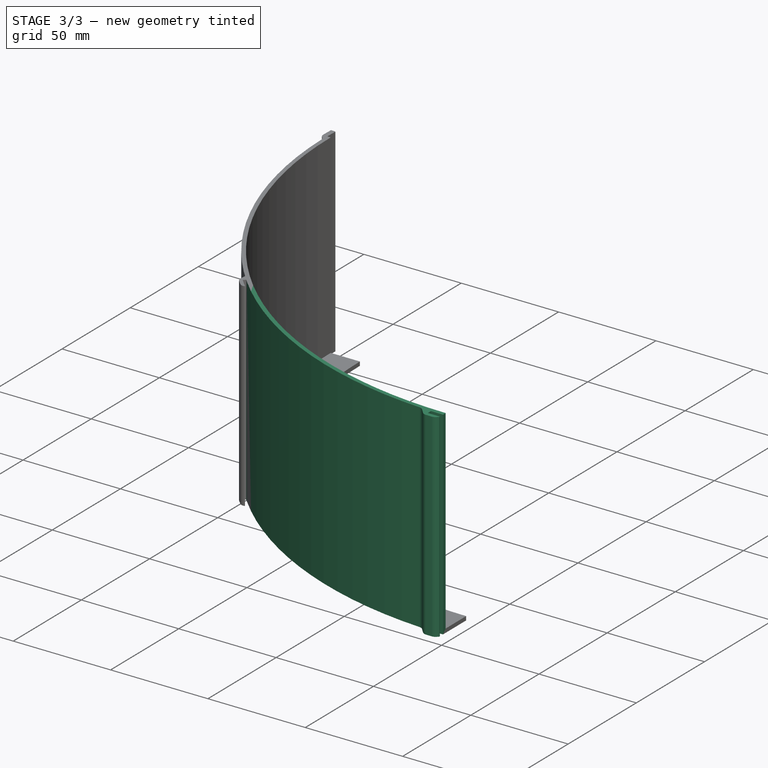
[diagram: stage 3 of 3 — iso view after this stage's code; geometry added in this stage tinted green]
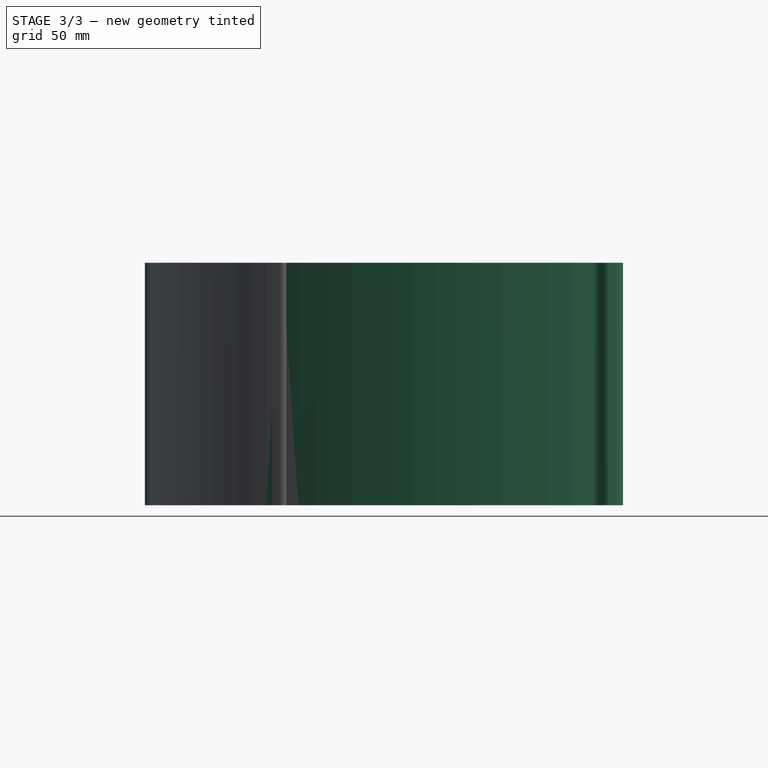
[diagram: stage 3 of 3 — front view after this stage's code; geometry added in this stage tinted green]
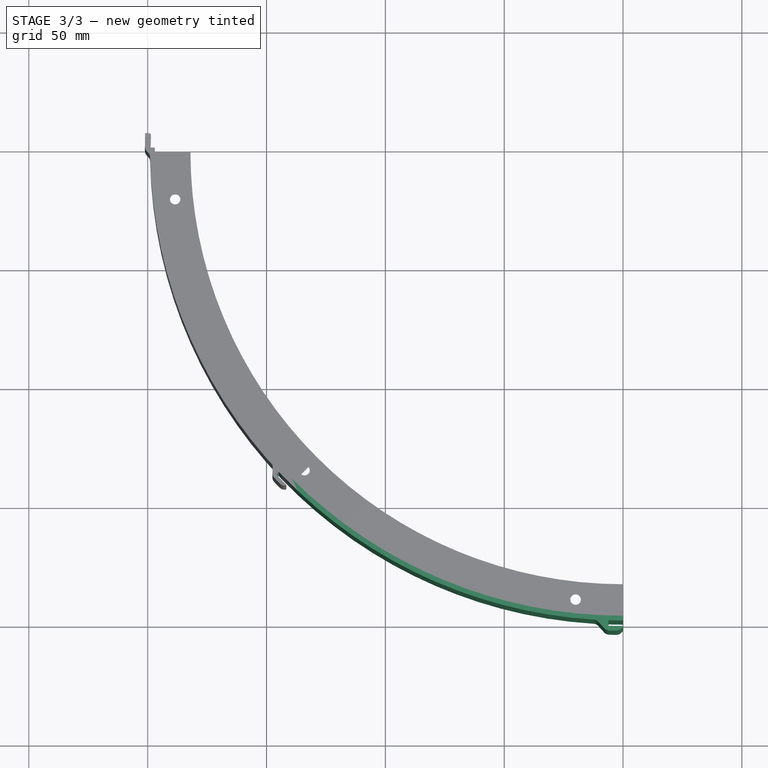
[diagram: stage 3 of 3 — top view after this stage's code; geometry added in this stage tinted green]
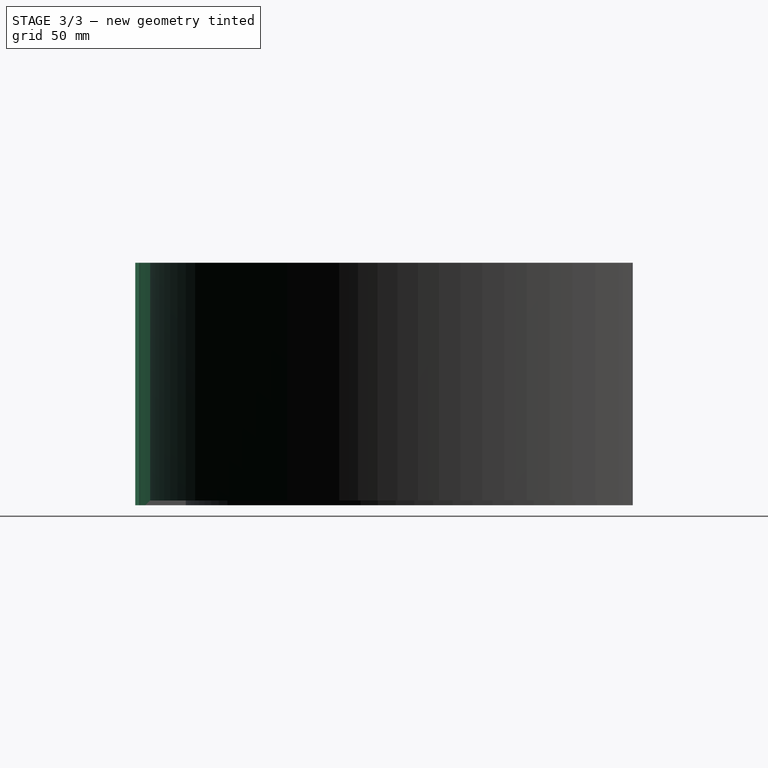
[diagram: stage 3 of 3 — right view after this stage's code; geometry added in this stage tinted green]
FEATURE [Sketcher::SketchObject] Sketch002
  AttachmentOffset = pos=(0,0,2) rot=(0,0,1;0rad)
  ExternalGeometry = -> [Sketch]
  FullyConstrained = true
  MapMode = 5
  Placement = pos=(0,0,2) rot=(0,0,1;0rad)
  Support = -> [XY_Plane]
  expr: .AttachmentOffset.Base.z = <<Pad>>.Length
  sketch-geometry (15):
    g0: ArcOfCircle CenterX=-1.80391e-11 CenterY=-1.80305e-11 CenterZ=0 NormalX=0 NormalY=0 NormalZ=1 AngleXU=0 Radius=197 StartAngle=3.14159 EndAngle=4.71239
    g1: ArcOfCircle CenterX=-6.51e-14 CenterY=4.227e-12 CenterZ=0 NormalX=0 NormalY=0 NormalZ=1 AngleXU=0 Radius=199 StartAngle=3.15661 EndAngle=4.65634
    g2: ArcOfCircle CenterX=3.44447e-09 CenterY=-5.31889e-11 CenterZ=0 NormalX=0 NormalY=0 NormalZ=1 AngleXU=0 Radius=199 StartAngle=4.68151 EndAngle=4.71239
    g3: ArcOfCircle CenterX=1.70969e-09 CenterY=-2.94882e-11 CenterZ=0 NormalX=0 NormalY=0 NormalZ=1 AngleXU=0 Radius=201.3 StartAngle=4.68151 EndAngle=4.71239
    g4: ArcOfCircle CenterX=2.28779e-10 CenterY=-1.3117e-12 CenterZ=0 NormalX=0 NormalY=0 NormalZ=1 AngleXU=0 Radius=203.3 StartAngle=4.67728 EndAngle=4.70455
    g5: LineSegment StartX=-11.1471 StartY=-198.688 StartZ=0 EndX=-7.13672 EndY=-203.175 EndZ=0
    g6: LineSegment StartX=-1.59375 StartY=-203.294 StartZ=0 EndX=-2e-16 EndY=-201.7 EndZ=0
    g7: LineSegment StartX=-2e-16 StartY=-201.7 StartZ=0 EndX=-1.237e-13 EndY=-201.3 EndZ=0
    g8: LineSegment StartX=-1.9e-14 StartY=-199 StartZ=0 EndX=-5.32e-14 EndY=-197 EndZ=0
    g9: LineSegment StartX=-6.14462 StartY=-198.905 StartZ=0 EndX=-6.21564 EndY=-201.204 EndZ=0
    g10: LineSegment StartX=-198.978 StartY=-2.98776 StartZ=0 EndX=-201.148 EndY=-0.835014 EndZ=0
    g11: LineSegment StartX=-201.059 StartY=6.05957 StartZ=0 EndX=-199.06 EndY=5.99932 EndZ=0
    g12: LineSegment StartX=-199.15 StartY=2.351e-13 StartZ=0 EndX=-197 EndY=1.56e-14 EndZ=0
    g13: ArcOfCircle CenterX=3.0225e-12 CenterY=3.7483e-12 CenterZ=0 NormalX=0 NormalY=0 NormalZ=1 AngleXU=0 Radius=199.15 StartAngle=3.11146 EndAngle=3.14159
    g14: ArcOfCircle CenterX=-1.658e-13 CenterY=2.9686e-12 CenterZ=0 NormalX=0 NormalY=0 NormalZ=1 AngleXU=0 Radius=201.15 StartAngle=3.11146 EndAngle=3.14574
  constraints (37):
    c: Coincident(g0,g-3)
    c: Coincident(g0,g-3)
    c: Coincident(g1,g-4)
    c: Coincident(g1,g-4)
    c: Equal(g0,g-3)
    c: Equal(g1,g-4)
    c: Coincident(g2,g-9)
    c: Coincident(g2,g-9)
    c: Coincident(g3,g-8)
    c: Coincident(g3,g-8)
    c: Coincident(g4,g-7)
    c: Coincident(g4,g-10)
    c: Equal(g4,g-7)
    c: Equal(g3,g-8)
    c: Equal(g2,g-9)
    c: Coincident(g5,g1)
    c: Coincident(g5,g4)
    c: Coincident(g6,g4)
    c: Coincident(g6,g-10)
    c: Coincident(g7,g6)
    c: Coincident(g7,g3)
    c: Coincident(g8,g2)
    c: Coincident(g8,g0)
    c: Coincident(g9,g2)
    c: Coincident(g9,g3)
    c: Coincident(g10,g1)
    c: Coincident(g10,g-5)
    c: Coincident(g11,g-5)
    c: Coincident(g11,g-6)
    c: Coincident(g12,g-6)
    c: Coincident(g12,g0)
    c: Coincident(g13,g11)
    c: Coincident(g13,g12)
    c: Coincident(g14,g11)
    c: Coincident(g14,g10)
    c: Equal(g14,g-5)
    c: Equal(g13,g-6)
FEATURE [PartDesign::Pad] Pad001
  BaseFeature = -> Pad
  Direction = (0,0,1)
  Length = 100
  Length2 = 10
  Profile = -> Sketch002
  ReferenceAxis = -> Sketch002 [N_Axis]
  Refine = true
  Type = 0
FEATURE [PartDesign::Fillet] Fillet
  Base = -> Pad001 [Edge58,Edge59,Edge60,Edge50,Edge51]
  BaseFeature = -> Pad001
  Radius = 3
  SupportTransform = false
  UseAllEdges = false
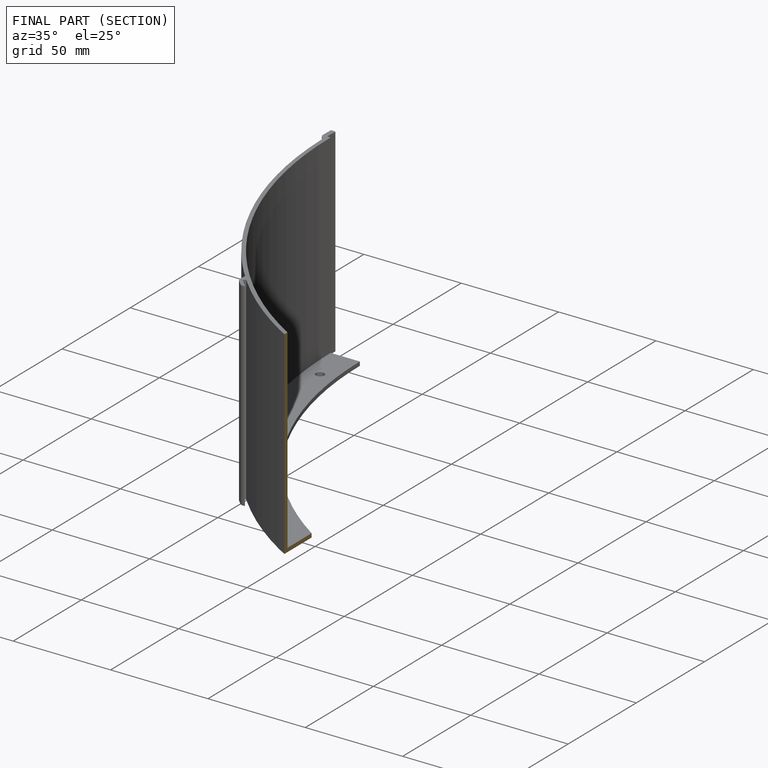
[diagram: finished part — half-section view (interior)]
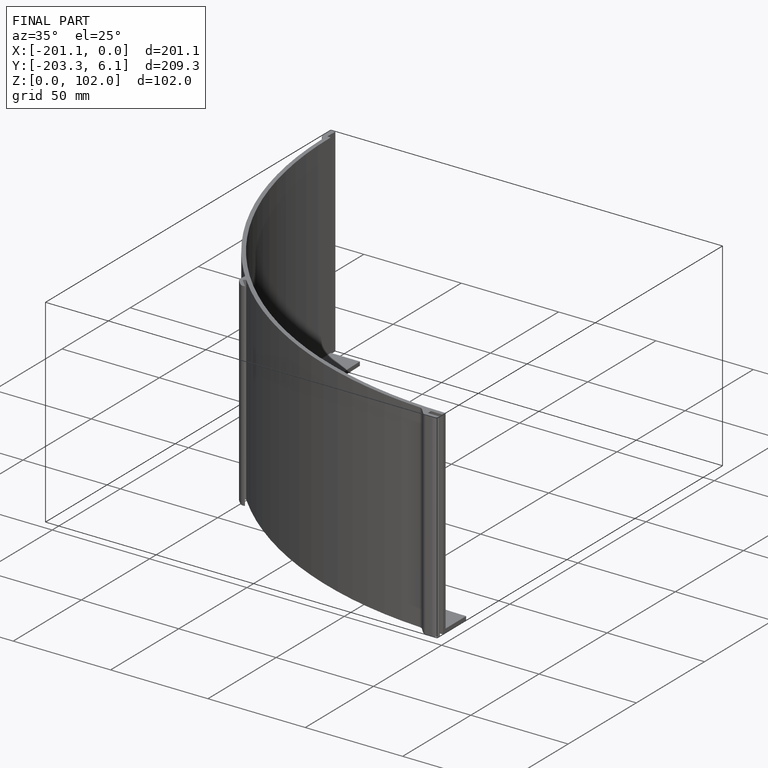
[diagram: finished part — iso view with bounding-box wireframe]
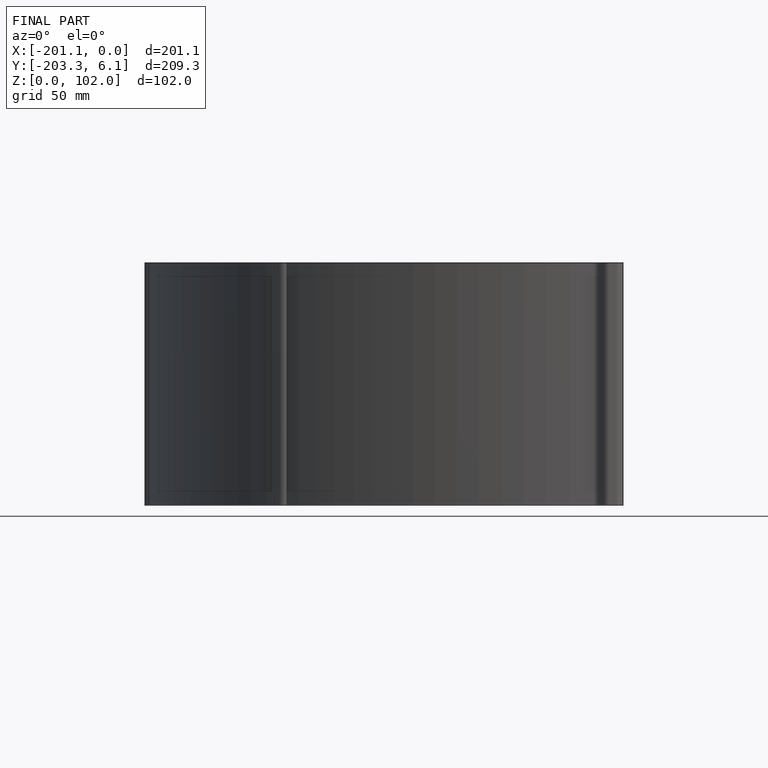
[diagram: finished part — front view with bounding-box wireframe]
